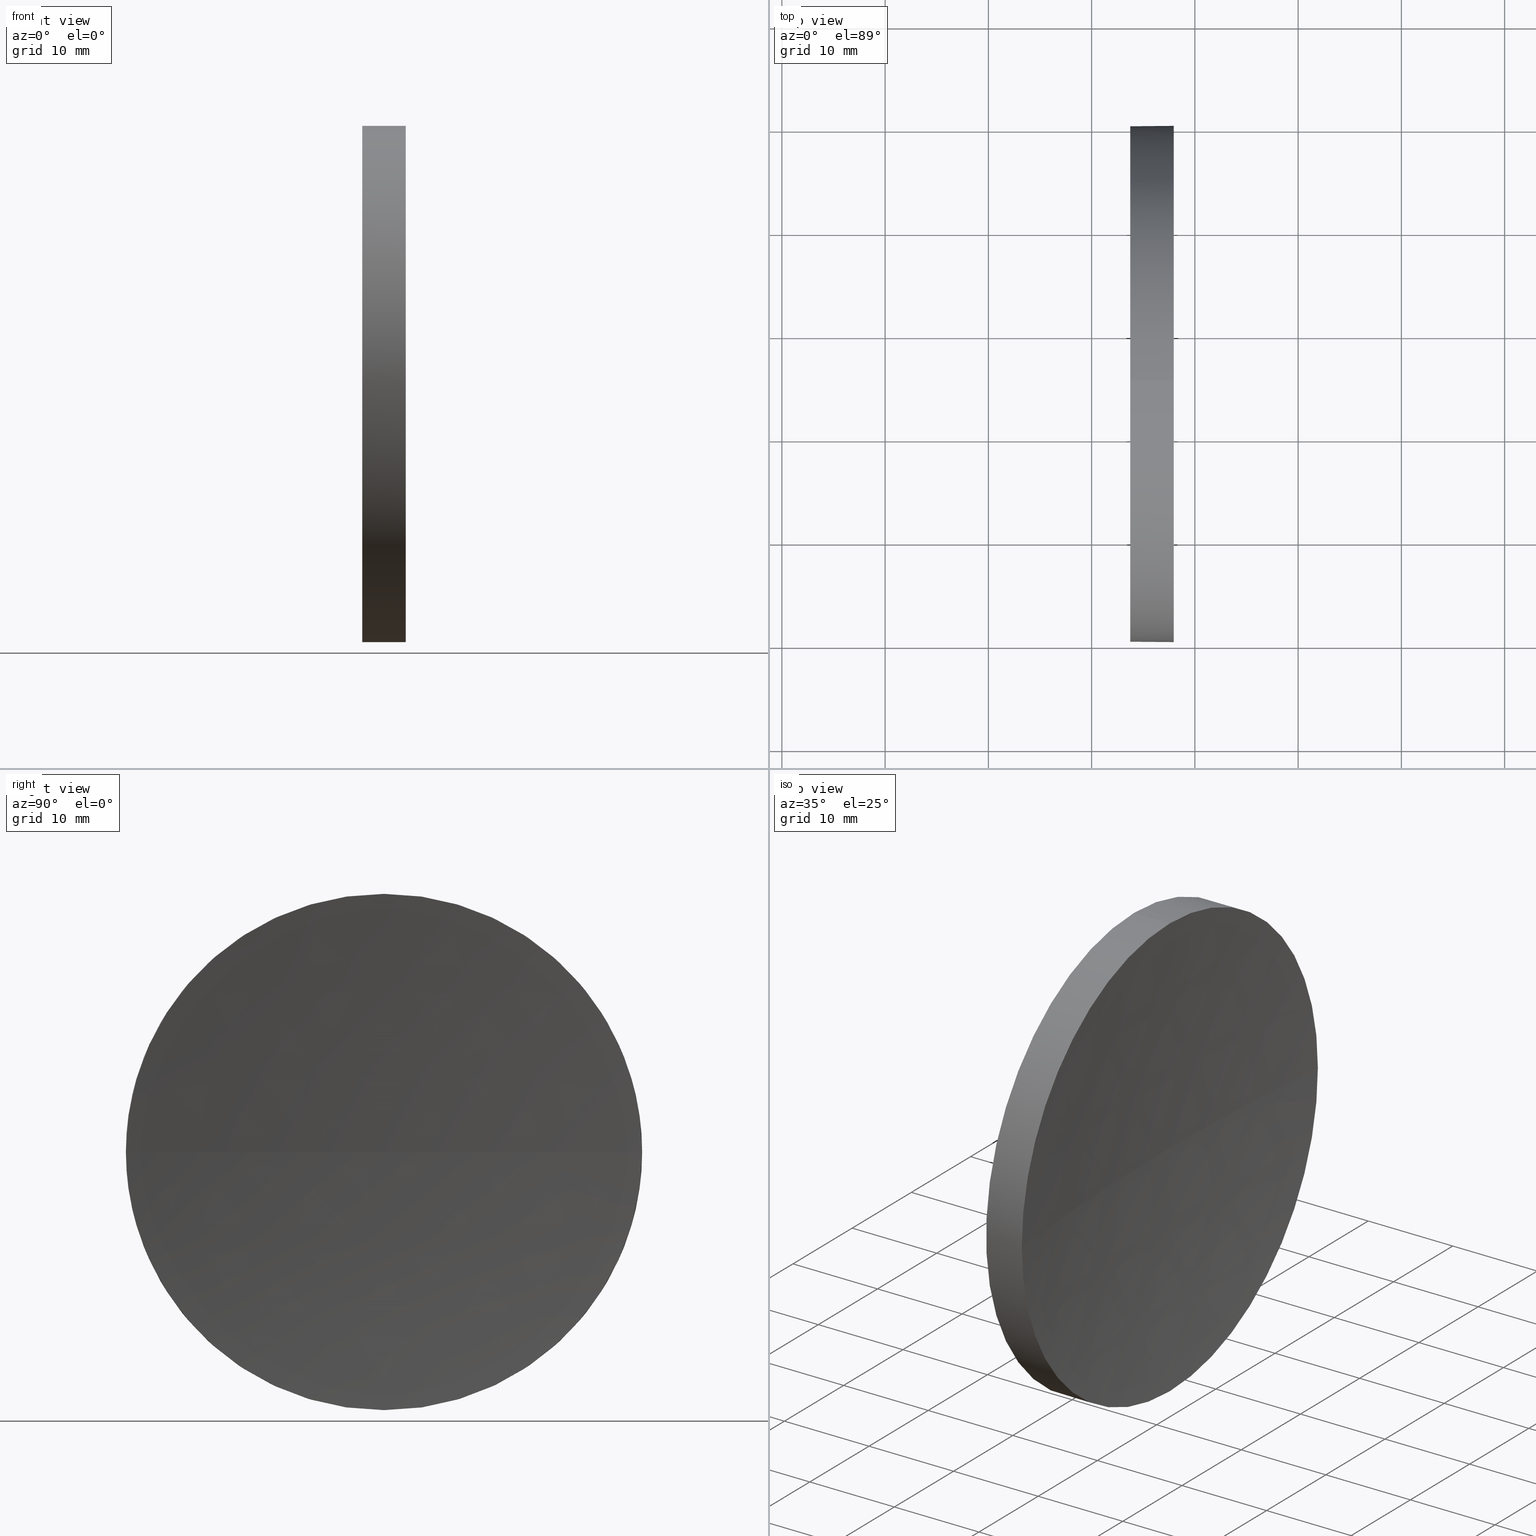
[diagram: canonical four-view strip — front | top / right | iso, engineering-drawing reading convention]
A machine part, canonical four-view strip (front | top / right | iso — engineering-drawing reading convention). The complete STEP part file that produces these views, byte-faithful:
ISO-10303-21;
HEADER;
FILE_DESCRIPTION (( 'STEP AP214' ),
    '1' );
FILE_NAME ('120059.STEP',
    '2019-06-18T01:49:44',
    ( '' ),
    ( '' ),
    'SwSTEP 2.0',
    'SolidWorks 2016',
    '' );
FILE_SCHEMA (( 'AUTOMOTIVE_DESIGN' ));
ENDSEC;

DATA;
#1 = ORIENTED_EDGE ( 'NONE', *, *, #3, .F. ) ;
#2 = PRODUCT_DEFINITION ( 'δ֪', '', #84, #155 ) ;
#3 = EDGE_CURVE ( 'NONE', #99, #163, #181, .T. ) ;
#4 = CARTESIAN_POINT ( 'NONE',  ( 117.9526836430682700, 90.15563045701533400, 0.0000000000000000000 ) ) ;
#5 = CARTESIAN_POINT ( 'NONE',  ( 105.6218371238301200, 65.15563045701519200, -24.99999999999998600 ) ) ;
#6 = CARTESIAN_POINT ( 'NONE',  ( 0.0000000000000000000, 0.0000000000000000000, 0.0000000000000000000 ) ) ;
#7 =( NAMED_UNIT ( * ) SI_UNIT ( $, .STERADIAN. ) SOLID_ANGLE_UNIT ( ) );
#8 = MECHANICAL_DESIGN_GEOMETRIC_PRESENTATION_REPRESENTATION (  '', ( #185 ), #26 ) ;
#9 = VERTEX_POINT ( 'NONE', #4 ) ;
#10 = DIRECTION ( 'NONE',  ( 1.000000000000000000, 0.0000000000000000000, 0.0000000000000000000 ) ) ;
#11 = SURFACE_STYLE_FILL_AREA ( #91 ) ;
#12 = CIRCLE ( 'NONE', #170, 258.1800000000000600 ) ;
#13 = AXIS2_PLACEMENT_3D ( 'NONE', #140, #33, #60 ) ;
#14 = CIRCLE ( 'NONE', #164, 24.99999999999999300 ) ;
#15 = CARTESIAN_POINT ( 'NONE',  ( 113.7394371346435000, 65.15563045701519200, 0.0000000000000000000 ) ) ;
#16 = EDGE_LOOP ( 'NONE', ( #167, #132 ) ) ;
#17 = DIRECTION ( 'NONE',  ( -1.000000000000000000, -0.0000000000000000000, -0.0000000000000000000 ) ) ;
#18 = CARTESIAN_POINT ( 'NONE',  ( 117.9526836430682700, 65.15563045701519200, -24.99999999999998200 ) ) ;
#19 = ORIENTED_EDGE ( 'NONE', *, *, #117, .F. ) ;
#20 = SURFACE_STYLE_USAGE ( .BOTH. , #110 ) ;
#21 = AXIS2_PLACEMENT_3D ( 'NONE', #184, #149, #36 ) ;
#22 = SURFACE_SIDE_STYLE ('',( #11 ) ) ;
#23 =( NAMED_UNIT ( * ) PLANE_ANGLE_UNIT ( ) SI_UNIT ( $, .RADIAN. ) );
#24 = DIRECTION ( 'NONE',  ( 0.0000000000000000000, 1.000000000000000000, 0.0000000000000000000 ) ) ;
#25 = VERTEX_POINT ( 'NONE', #18 ) ;
#26 =( GEOMETRIC_REPRESENTATION_CONTEXT ( 3 ) GLOBAL_UNCERTAINTY_ASSIGNED_CONTEXT ( ( #52 ) ) GLOBAL_UNIT_ASSIGNED_CONTEXT ( ( #120, #23, #133 ) ) REPRESENTATION_CONTEXT ( 'NONE', 'WORKASPACE' ) );
#27 = FACE_OUTER_BOUND ( 'NONE', #16, .T. ) ;
#28 = PRESENTATION_LAYER_ASSIGNMENT (  '', '', ( #185 ) ) ;
#29 = DIRECTION ( 'NONE',  ( -1.000000000000000000, -0.0000000000000000000, -0.0000000000000000000 ) ) ;
#30 = ORIENTED_EDGE ( 'NONE', *, *, #162, .F. ) ;
#31 = DIRECTION ( 'NONE',  ( -1.000000000000000000, -0.0000000000000000000, -0.0000000000000000000 ) ) ;
#32 = AXIS2_PLACEMENT_3D ( 'NONE', #75, #45, #72 ) ;
#33 = DIRECTION ( 'NONE',  ( -1.000000000000000000, -0.0000000000000000000, -0.0000000000000000000 ) ) ;
#34 = ORIENTED_EDGE ( 'NONE', *, *, #111, .F. ) ;
#35 = DIRECTION ( 'NONE',  ( 0.0000000000000000000, 0.0000000000000000000, 1.000000000000000000 ) ) ;
#36 = DIRECTION ( 'NONE',  ( 0.0000000000000000000, 0.0000000000000000000, 1.000000000000000000 ) ) ;
#37 = SHAPE_DEFINITION_REPRESENTATION ( #74, #70 ) ;
#38 = ADVANCED_FACE ( 'NONE', ( #39 ), #176, .T. ) ;
#39 = FACE_OUTER_BOUND ( 'NONE', #124, .T. ) ;
#40 = ADVANCED_FACE ( 'NONE', ( #106 ), #136, .F. ) ;
#41 = APPLICATION_CONTEXT ( 'automotive_design' ) ;
#42 = CARTESIAN_POINT ( 'NONE',  ( 113.7394371346435000, 65.15563045701519200, 24.99999999999999300 ) ) ;
#43 = VERTEX_POINT ( 'NONE', #171 ) ;
#44 = AXIS2_PLACEMENT_3D ( 'NONE', #100, #104, #173 ) ;
#45 = DIRECTION ( 'NONE',  ( 0.0000000000000000000, 0.0000000000000000000, -1.000000000000000000 ) ) ;
#46 = CYLINDRICAL_SURFACE ( 'NONE', #44, 24.99999999999998600 ) ;
#47 = DIRECTION ( 'NONE',  ( 0.0000000000000000000, 0.0000000000000000000, 1.000000000000000000 ) ) ;
#48 = DIRECTION ( 'NONE',  ( 0.0000000000000000000, 1.224646799147353200E-016, -1.000000000000000000 ) ) ;
#49 = DIRECTION ( 'NONE',  ( 0.0000000000000000000, 0.0000000000000000000, -1.000000000000000000 ) ) ;
#50 = FILL_AREA_STYLE ('',( #87 ) ) ;
#51 = CIRCLE ( 'NONE', #21, 24.99999999999999300 ) ;
#52 = UNCERTAINTY_MEASURE_WITH_UNIT (LENGTH_MEASURE( 1.000000000000000100E-005 ), #120, 'distance_accuracy_value', 'NONE');
#53 =( GEOMETRIC_REPRESENTATION_CONTEXT ( 3 ) GLOBAL_UNCERTAINTY_ASSIGNED_CONTEXT ( ( #105 ) ) GLOBAL_UNIT_ASSIGNED_CONTEXT ( ( #122, #108, #7 ) ) REPRESENTATION_CONTEXT ( 'NONE', 'WORKASPACE' ) );
#54 = ORIENTED_EDGE ( 'NONE', *, *, #129, .T. ) ;
#55 = DIRECTION ( 'NONE',  ( 0.0000000000000000000, 0.0000000000000000000, 1.000000000000000000 ) ) ;
#56 = ORIENTED_EDGE ( 'NONE', *, *, #114, .T. ) ;
#57 = ORIENTED_EDGE ( 'NONE', *, *, #109, .F. ) ;
#58 = CARTESIAN_POINT ( 'NONE',  ( 117.9526836430682700, 65.15563045701519200, 0.0000000000000000000 ) ) ;
#59 = EDGE_LOOP ( 'NONE', ( #169, #57, #138, #54 ) ) ;
#60 = DIRECTION ( 'NONE',  ( 0.0000000000000000000, 0.0000000000000000000, 1.000000000000000000 ) ) ;
#61 = AXIS2_PLACEMENT_3D ( 'NONE', #113, #175, #24 ) ;
#62 = ORIENTED_EDGE ( 'NONE', *, *, #3, .T. ) ;
#63 = CARTESIAN_POINT ( 'NONE',  ( 117.9526836430682700, 65.15563045701519200, 0.0000000000000000000 ) ) ;
#64 = AXIS2_PLACEMENT_3D ( 'NONE', #159, #154, #161 ) ;
#65 = VECTOR ( 'NONE', #29, 1000.000000000000000 ) ;
#66 = DIRECTION ( 'NONE',  ( 1.000000000000000000, 0.0000000000000000000, 0.0000000000000000000 ) ) ;
#67 = CIRCLE ( 'NONE', #102, 24.99999999999998200 ) ;
#68 = EDGE_LOOP ( 'NONE', ( #71, #115, #95, #19 ) ) ;
#69 = AXIS2_PLACEMENT_3D ( 'NONE', #180, #147, #94 ) ;
#70 = ADVANCED_BREP_SHAPE_REPRESENTATION ( '120059', ( #156, #144 ), #53 ) ;
#71 = ORIENTED_EDGE ( 'NONE', *, *, #166, .F. ) ;
#72 = DIRECTION ( 'NONE',  ( 0.0000000000000000000, 1.000000000000000000, 0.0000000000000000000 ) ) ;
#73 = ORIENTED_EDGE ( 'NONE', *, *, #96, .F. ) ;
#74 = PRODUCT_DEFINITION_SHAPE ( 'NONE', 'NONE',  #2 ) ;
#75 = CARTESIAN_POINT ( 'NONE',  ( 374.9194371346435400, 65.15563045701493600, 0.0000000000000000000 ) ) ;
#76 = COLOUR_RGB ( '',1.000000000000000000, 1.000000000000000000, 1.000000000000000000 ) ;
#77 = CARTESIAN_POINT ( 'NONE',  ( 113.7394371346435000, 65.15563045701519200, 0.0000000000000000000 ) ) ;
#78 = FILL_AREA_STYLE_COLOUR ( '', #139 ) ;
#79 = PLANE ( 'NONE',  #81 ) ;
#80 = APPLICATION_PROTOCOL_DEFINITION ( 'draft international standard', 'automotive_design', 1998, #41 ) ;
#81 = AXIS2_PLACEMENT_3D ( 'NONE', #77, #10, #49 ) ;
#82 = UNCERTAINTY_MEASURE_WITH_UNIT (LENGTH_MEASURE( 1.000000000000000100E-005 ), #107, 'distance_accuracy_value', 'NONE');
#83 = FACE_OUTER_BOUND ( 'NONE', #158, .T. ) ;
#84 = PRODUCT_DEFINITION_FORMATION_WITH_SPECIFIED_SOURCE ( '�κ�', '', #148, .NOT_KNOWN. ) ;
#85 = CLOSED_SHELL ( 'NONE', ( #38, #40, #152, #90, #150 ) ) ;
#86 = DIRECTION ( 'NONE',  ( 0.0000000000000000000, 0.0000000000000000000, 1.000000000000000000 ) ) ;
#87 = FILL_AREA_STYLE_COLOUR ( '', #76 ) ;
#88 = VERTEX_POINT ( 'NONE', #142 ) ;
#89 = SURFACE_STYLE_USAGE ( .BOTH. , #22 ) ;
#90 = ADVANCED_FACE ( 'NONE', ( #83 ), #46, .T. ) ;
#91 = FILL_AREA_STYLE ('',( #78 ) ) ;
#92 = ORIENTED_EDGE ( 'NONE', *, *, #109, .T. ) ;
#93 = PRODUCT_RELATED_PRODUCT_CATEGORY ( 'part', '', ( #148 ) ) ;
#94 = DIRECTION ( 'NONE',  ( 1.000000000000000000, 0.0000000000000000000, 0.0000000000000000000 ) ) ;
#95 = ORIENTED_EDGE ( 'NONE', *, *, #129, .F. ) ;
#96 = EDGE_CURVE ( 'NONE', #88, #163, #14, .T. ) ;
#97 = PRESENTATION_STYLE_ASSIGNMENT (( #89 ) ) ;
#98 = CIRCLE ( 'NONE', #137, 24.99999999999998200 ) ;
#99 = VERTEX_POINT ( 'NONE', #143 ) ;
#100 = CARTESIAN_POINT ( 'NONE',  ( 105.6218371238301200, 65.15563045701519200, 0.0000000000000000000 ) ) ;
#101 = CARTESIAN_POINT ( 'NONE',  ( 117.9526836430682700, 65.15563045701519200, 0.0000000000000000000 ) ) ;
#102 = AXIS2_PLACEMENT_3D ( 'NONE', #101, #31, #35 ) ;
#103 = CIRCLE ( 'NONE', #64, 24.99999999999998200 ) ;
#104 = DIRECTION ( 'NONE',  ( -1.000000000000000000, -0.0000000000000000000, -0.0000000000000000000 ) ) ;
#105 = UNCERTAINTY_MEASURE_WITH_UNIT (LENGTH_MEASURE( 1.000000000000000100E-005 ), #122, 'distance_accuracy_value', 'NONE');
#106 = FACE_OUTER_BOUND ( 'NONE', #68, .T. ) ;
#107 =( LENGTH_UNIT ( ) NAMED_UNIT ( * ) SI_UNIT ( .MILLI., .METRE. ) );
#108 =( NAMED_UNIT ( * ) PLANE_ANGLE_UNIT ( ) SI_UNIT ( $, .RADIAN. ) );
#109 = EDGE_CURVE ( 'NONE', #25, #131, #98, .T. ) ;
#110 = SURFACE_SIDE_STYLE ('',( #145 ) ) ;
#111 = EDGE_CURVE ( 'NONE', #25, #88, #186, .T. ) ;
#112 = PRESENTATION_STYLE_ASSIGNMENT (( #20 ) ) ;
#113 = CARTESIAN_POINT ( 'NONE',  ( 374.9194371346435400, 65.15563045701493600, 0.0000000000000000000 ) ) ;
#114 = EDGE_CURVE ( 'NONE', #9, #25, #67, .T. ) ;
#115 = ORIENTED_EDGE ( 'NONE', *, *, #182, .T. ) ;
#116 = STYLED_ITEM ( 'NONE', ( #112 ), #156 ) ;
#117 = EDGE_CURVE ( 'NONE', #99, #9, #103, .T. ) ;
#118 = FACE_OUTER_BOUND ( 'NONE', #59, .T. ) ;
#119 =( NAMED_UNIT ( * ) SI_UNIT ( $, .STERADIAN. ) SOLID_ANGLE_UNIT ( ) );
#120 =( LENGTH_UNIT ( ) NAMED_UNIT ( * ) SI_UNIT ( .MILLI., .METRE. ) );
#121 = VECTOR ( 'NONE', #172, 1000.000000000000000 ) ;
#122 =( LENGTH_UNIT ( ) NAMED_UNIT ( * ) SI_UNIT ( .MILLI., .METRE. ) );
#123 = AXIS2_PLACEMENT_3D ( 'NONE', #63, #160, #47 ) ;
#124 = EDGE_LOOP ( 'NONE', ( #56, #134, #30, #1, #183 ) ) ;
#125 = APPLICATION_PROTOCOL_DEFINITION ( 'draft international standard', 'automotive_design', 1998, #179 ) ;
#126 = CIRCLE ( 'NONE', #69, 258.1800000000001200 ) ;
#127 = DIRECTION ( 'NONE',  ( 0.0000000000000000000, 0.0000000000000000000, 1.000000000000000000 ) ) ;
#128 = CARTESIAN_POINT ( 'NONE',  ( 105.6218371238301200, 65.15563045701519200, 24.99999999999998600 ) ) ;
#129 = EDGE_CURVE ( 'NONE', #9, #43, #126, .T. ) ;
#130 = DIRECTION ( 'NONE',  ( -1.000000000000000000, -0.0000000000000000000, -0.0000000000000000000 ) ) ;
#131 = VERTEX_POINT ( 'NONE', #141 ) ;
#132 = ORIENTED_EDGE ( 'NONE', *, *, #96, .T. ) ;
#133 =( NAMED_UNIT ( * ) SI_UNIT ( $, .STERADIAN. ) SOLID_ANGLE_UNIT ( ) );
#134 = ORIENTED_EDGE ( 'NONE', *, *, #111, .T. ) ;
#135 = MECHANICAL_DESIGN_GEOMETRIC_PRESENTATION_REPRESENTATION (  '', ( #116 ), #178 ) ;
#136 = SPHERICAL_SURFACE ( 'NONE', #32, 258.1800000000000600 ) ;
#137 = AXIS2_PLACEMENT_3D ( 'NONE', #58, #130, #127 ) ;
#138 = ORIENTED_EDGE ( 'NONE', *, *, #114, .F. ) ;
#139 = COLOUR_RGB ( '',1.000000000000000000, 1.000000000000000000, 1.000000000000000000 ) ;
#140 = CARTESIAN_POINT ( 'NONE',  ( 105.6218371238301200, 65.15563045701519200, 0.0000000000000000000 ) ) ;
#141 = CARTESIAN_POINT ( 'NONE',  ( 117.9526836430682700, 40.15563045701479400, -3.061616997868400000E-015 ) ) ;
#142 = CARTESIAN_POINT ( 'NONE',  ( 113.7394371346435000, 65.15563045701519200, -24.99999999999999300 ) ) ;
#143 = CARTESIAN_POINT ( 'NONE',  ( 117.9526836430682700, 65.15563045701519200, 24.99999999999998200 ) ) ;
#144 = AXIS2_PLACEMENT_3D ( 'NONE', #6, #55, #66 ) ;
#145 = SURFACE_STYLE_FILL_AREA ( #50 ) ;
#146 = CARTESIAN_POINT ( 'NONE',  ( 374.9194371346435400, 65.15563045701493600, 0.0000000000000000000 ) ) ;
#147 = DIRECTION ( 'NONE',  ( 0.0000000000000000000, 0.0000000000000000000, 1.000000000000000000 ) ) ;
#148 = PRODUCT ( '120059', '120059', '', ( #177 ) ) ;
#149 = DIRECTION ( 'NONE',  ( -1.000000000000000000, -0.0000000000000000000, -0.0000000000000000000 ) ) ;
#150 = ADVANCED_FACE ( 'NONE', ( #27 ), #79, .F. ) ;
#151 = DIRECTION ( 'NONE',  ( 0.0000000000000000000, 1.000000000000000000, 1.224646799147353200E-016 ) ) ;
#152 = ADVANCED_FACE ( 'NONE', ( #118 ), #153, .F. ) ;
#153 = SPHERICAL_SURFACE ( 'NONE', #61, 258.1800000000000600 ) ;
#154 = DIRECTION ( 'NONE',  ( -1.000000000000000000, -0.0000000000000000000, -0.0000000000000000000 ) ) ;
#155 = PRODUCT_DEFINITION_CONTEXT ( 'detailed design', #179, 'design' ) ;
#156 = MANIFOLD_SOLID_BREP ( '��ת1', #85 ) ;
#157 = CIRCLE ( 'NONE', #123, 24.99999999999998200 ) ;
#158 = EDGE_LOOP ( 'NONE', ( #34, #92, #168, #62, #73 ) ) ;
#159 = CARTESIAN_POINT ( 'NONE',  ( 117.9526836430682700, 65.15563045701519200, 0.0000000000000000000 ) ) ;
#160 = DIRECTION ( 'NONE',  ( -1.000000000000000000, -0.0000000000000000000, -0.0000000000000000000 ) ) ;
#161 = DIRECTION ( 'NONE',  ( 0.0000000000000000000, 0.0000000000000000000, 1.000000000000000000 ) ) ;
#162 = EDGE_CURVE ( 'NONE', #163, #88, #51, .T. ) ;
#163 = VERTEX_POINT ( 'NONE', #42 ) ;
#164 = AXIS2_PLACEMENT_3D ( 'NONE', #15, #17, #86 ) ;
#165 =( NAMED_UNIT ( * ) PLANE_ANGLE_UNIT ( ) SI_UNIT ( $, .RADIAN. ) );
#166 = EDGE_CURVE ( 'NONE', #131, #99, #157, .T. ) ;
#167 = ORIENTED_EDGE ( 'NONE', *, *, #162, .T. ) ;
#168 = ORIENTED_EDGE ( 'NONE', *, *, #166, .T. ) ;
#169 = ORIENTED_EDGE ( 'NONE', *, *, #182, .F. ) ;
#170 = AXIS2_PLACEMENT_3D ( 'NONE', #146, #48, #151 ) ;
#171 = CARTESIAN_POINT ( 'NONE',  ( 116.7394371346434700, 65.15563045701495100, 0.0000000000000000000 ) ) ;
#172 = DIRECTION ( 'NONE',  ( -1.000000000000000000, -0.0000000000000000000, -0.0000000000000000000 ) ) ;
#173 = DIRECTION ( 'NONE',  ( 0.0000000000000000000, 0.0000000000000000000, 1.000000000000000000 ) ) ;
#174 = PRESENTATION_LAYER_ASSIGNMENT (  '', '', ( #116 ) ) ;
#175 = DIRECTION ( 'NONE',  ( 0.0000000000000000000, 0.0000000000000000000, -1.000000000000000000 ) ) ;
#176 = CYLINDRICAL_SURFACE ( 'NONE', #13, 24.99999999999998600 ) ;
#177 = PRODUCT_CONTEXT ( 'NONE', #41, 'mechanical' ) ;
#178 =( GEOMETRIC_REPRESENTATION_CONTEXT ( 3 ) GLOBAL_UNCERTAINTY_ASSIGNED_CONTEXT ( ( #82 ) ) GLOBAL_UNIT_ASSIGNED_CONTEXT ( ( #107, #165, #119 ) ) REPRESENTATION_CONTEXT ( 'NONE', 'WORKASPACE' ) );
#179 = APPLICATION_CONTEXT ( 'automotive_design' ) ;
#180 = CARTESIAN_POINT ( 'NONE',  ( 374.9194371346435400, 65.15563045701493600, 0.0000000000000000000 ) ) ;
#181 = LINE ( 'NONE', #128, #121 ) ;
#182 = EDGE_CURVE ( 'NONE', #131, #43, #12, .T. ) ;
#183 = ORIENTED_EDGE ( 'NONE', *, *, #117, .T. ) ;
#184 = CARTESIAN_POINT ( 'NONE',  ( 113.7394371346435000, 65.15563045701519200, 0.0000000000000000000 ) ) ;
#185 = STYLED_ITEM ( 'NONE', ( #97 ), #70 ) ;
#186 = LINE ( 'NONE', #5, #65 ) ;
ENDSEC;
END-ISO-10303-21;
